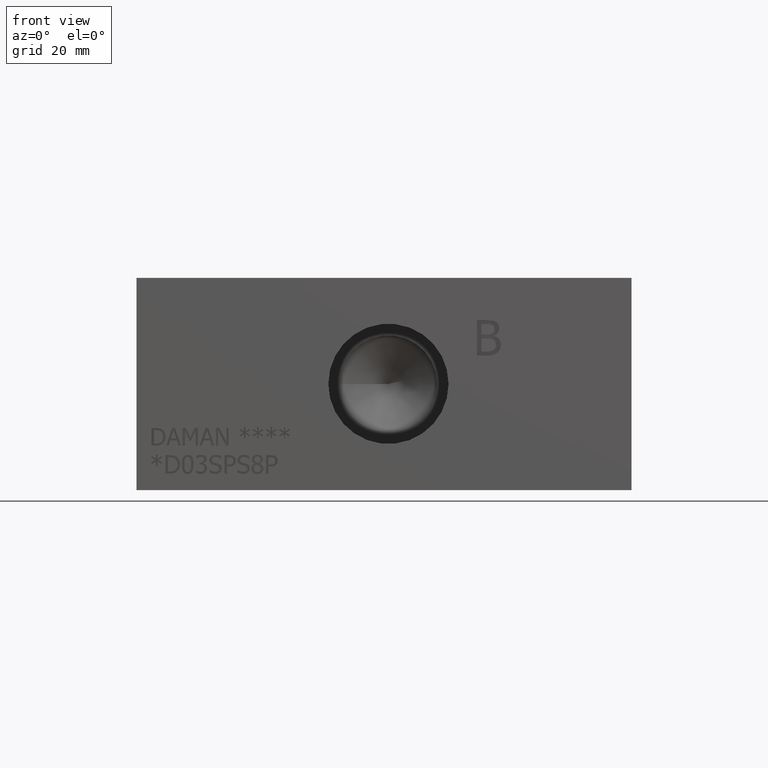
[diagram: clean part render]
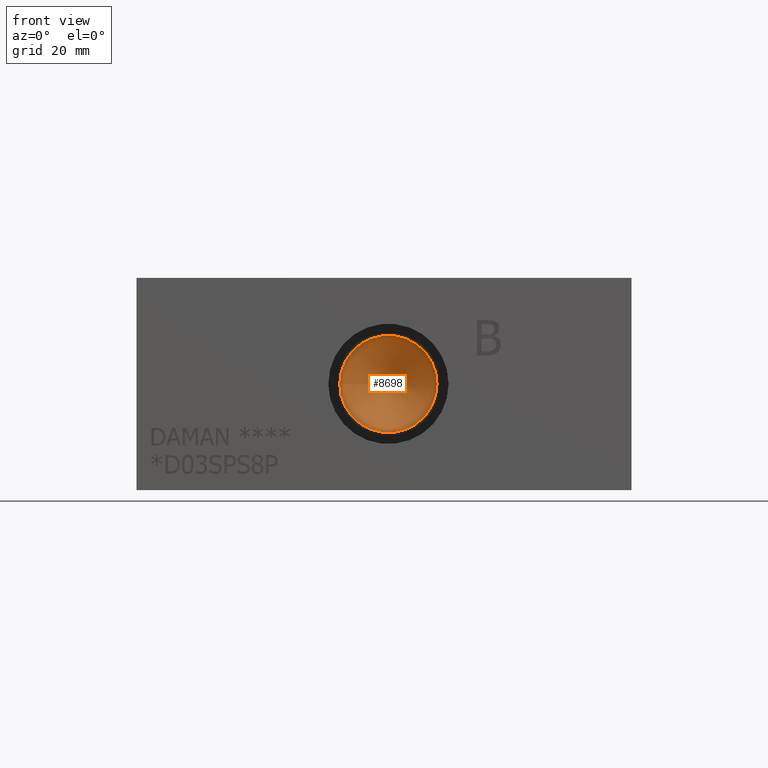
[diagram: same view with one face highlighted and labeled with its STEP entity id]
A machine part, front view. The second image highlights one B-rep face of the part: STEP entity #8698.
In plain terms, the highlighted conical surface has half-angle 60 deg.
Its self-contained STEP definition (entity closure, byte-faithful):
#41=CONICAL_SURFACE('',#9037,4.3688,1.0471975511966);
#70=CIRCLE('',#9038,8.7376);
#71=CIRCLE('',#9039,8.7376);
#868=FACE_OUTER_BOUND('',#1350,.T.);
#1350=EDGE_LOOP('',(#7541,#7542,#7543,#7544));
#2225=LINE('',#14788,#3065);
#3065=VECTOR('',#10523,4.3688);
#4107=VERTEX_POINT('',#14784);
#4108=VERTEX_POINT('',#14785);
#4109=VERTEX_POINT('',#14787);
#5284=EDGE_CURVE('',#4107,#4108,#70,.T.);
#5285=EDGE_CURVE('',#4108,#4109,#2225,.T.);
#5286=EDGE_CURVE('',#4108,#4107,#71,.T.);
#7541=ORIENTED_EDGE('',*,*,#5284,.T.);
#7542=ORIENTED_EDGE('',*,*,#5285,.T.);
#7543=ORIENTED_EDGE('',*,*,#5285,.F.);
#7544=ORIENTED_EDGE('',*,*,#5286,.T.);
#8698=ADVANCED_FACE('',(#868),#41,.F.);
#9037=AXIS2_PLACEMENT_3D('',#14783,#10519,#10520);
#9038=AXIS2_PLACEMENT_3D('',#14786,#10521,#10522);
#9039=AXIS2_PLACEMENT_3D('',#14789,#10524,#10525);
#10519=DIRECTION('center_axis',(0.,-1.,0.));
#10520=DIRECTION('ref_axis',(1.,0.,0.));
#10521=DIRECTION('center_axis',(0.,-1.,0.));
#10522=DIRECTION('ref_axis',(1.,0.,0.));
#10523=DIRECTION('',(0.866025403784439,0.5,1.06057523872491E-16));
#10524=DIRECTION('center_axis',(0.,-1.,0.));
#10525=DIRECTION('ref_axis',(1.,0.,0.));
#14783=CARTESIAN_POINT('Origin',(45.2374,18.3937978560356,19.05));
#14784=CARTESIAN_POINT('',(53.975,15.87147,19.05));
#14785=CARTESIAN_POINT('',(36.4998,15.87147,19.05));
#14786=CARTESIAN_POINT('Origin',(45.2374,15.87147,19.05));
#14787=CARTESIAN_POINT('',(45.2374,20.9161257120713,19.05));
#14788=CARTESIAN_POINT('',(40.8686,18.3937978560356,19.05));
#14789=CARTESIAN_POINT('Origin',(45.2374,15.87147,19.05));